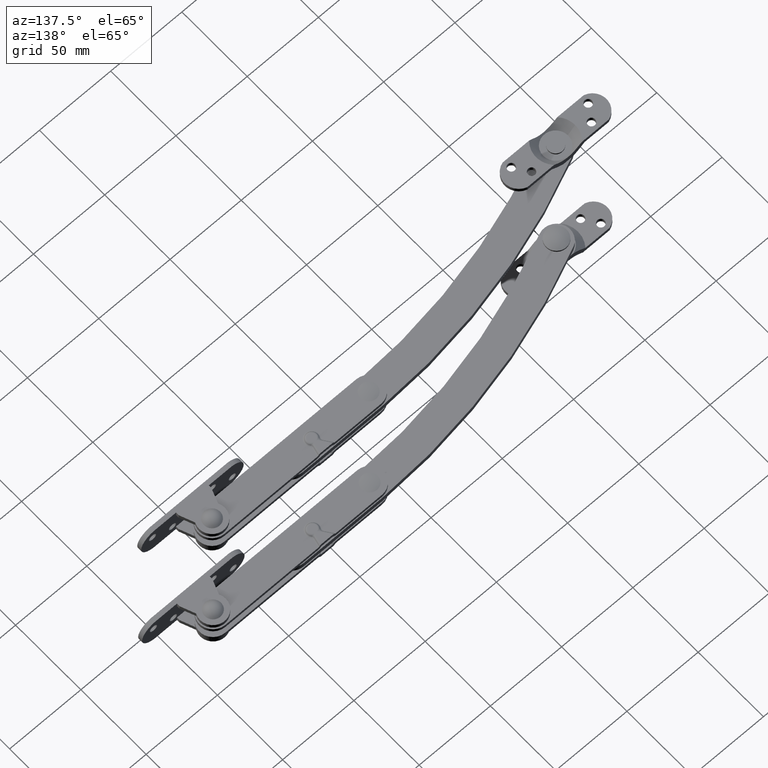
[diagram: clean part render]
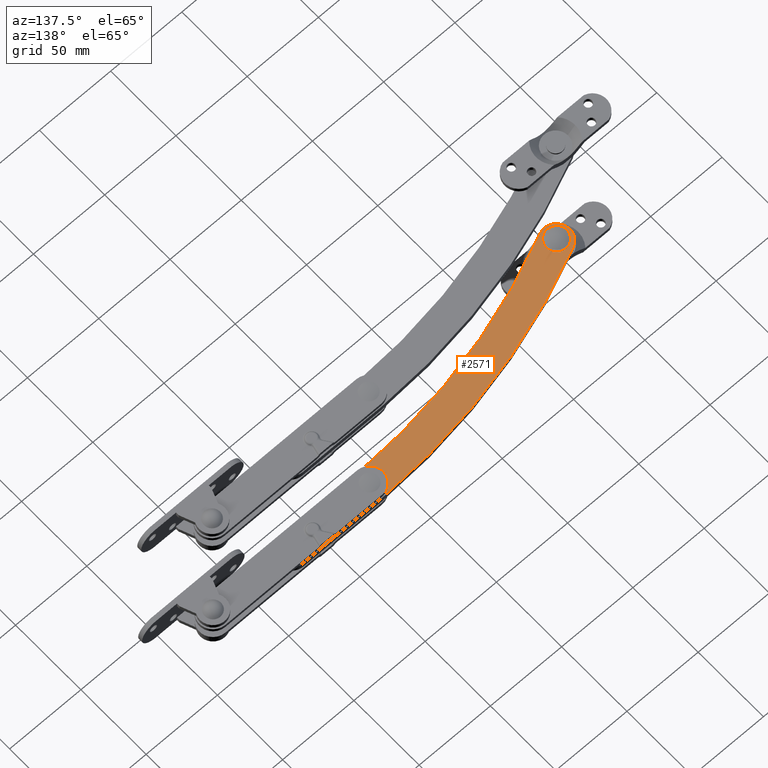
[diagram: same view with one face highlighted and labeled with its STEP entity id]
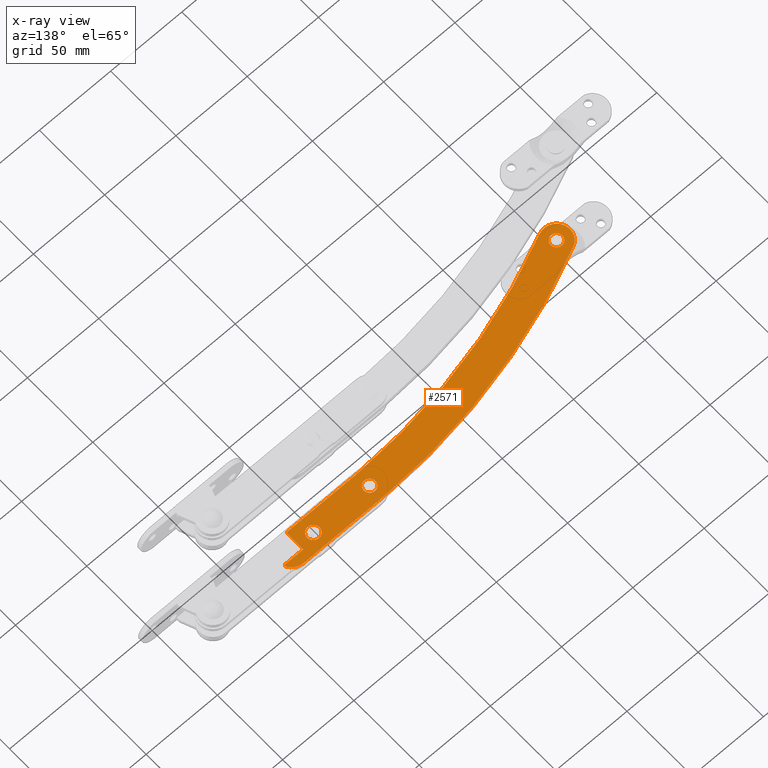
[diagram: x-ray of the same camera — body ghosted, the highlighted face saturated]
A machine part, auxiliary view. The second image highlights one B-rep face of the part: STEP entity #2571.
The next image is the same camera in x-ray: the body ghosted, the highlighted face saturated — about 0% of this face is hidden behind the body in this view.
In plain terms, the highlighted planar face has unit normal (0, 0, 1).
Its self-contained STEP definition (entity closure, byte-faithful):
#185=FACE_BOUND('',#587,.T.);
#186=FACE_BOUND('',#588,.T.);
#187=FACE_BOUND('',#589,.T.);
#307=PLANE('',#2773);
#417=FACE_OUTER_BOUND('',#586,.T.);
#586=EDGE_LOOP('',(#2133,#2134,#2135,#2136,#2137,#2138,#2139,#2140,#2141,
#2142));
#587=EDGE_LOOP('',(#2143));
#588=EDGE_LOOP('',(#2144));
#589=EDGE_LOOP('',(#2145));
#832=LINE('',#4659,#1006);
#835=LINE('',#4665,#1009);
#836=LINE('',#4667,#1010);
#837=LINE('',#4673,#1011);
#1006=VECTOR('',#3290,48.8921321404862);
#1009=VECTOR('',#3295,11.9998829026952);
#1010=VECTOR('',#3296,12.2112294809898);
#1011=VECTOR('',#3301,55.1025181390767);
#1112=CIRCLE('',#2770,1.);
#1114=CIRCLE('',#2774,1.);
#1115=CIRCLE('',#2775,9.5);
#1116=CIRCLE('',#2776,410.);
#1117=CIRCLE('',#2777,9.5);
#1118=CIRCLE('',#2778,392.);
#1119=CIRCLE('',#2779,4.30842198490352);
#1120=CIRCLE('',#2780,4.);
#1121=CIRCLE('',#2781,4.);
#1309=VERTEX_POINT('',#4649);
#1310=VERTEX_POINT('',#4650);
#1313=VERTEX_POINT('',#4658);
#1315=VERTEX_POINT('',#4664);
#1316=VERTEX_POINT('',#4666);
#1317=VERTEX_POINT('',#4668);
#1318=VERTEX_POINT('',#4670);
#1319=VERTEX_POINT('',#4672);
#1320=VERTEX_POINT('',#4674);
#1321=VERTEX_POINT('',#4676);
#1322=VERTEX_POINT('',#4679);
#1323=VERTEX_POINT('',#4681);
#1324=VERTEX_POINT('',#4683);
#1610=EDGE_CURVE('',#1309,#1310,#1112,.T.);
#1614=EDGE_CURVE('',#1313,#1310,#832,.T.);
#1617=EDGE_CURVE('',#1309,#1315,#835,.T.);
#1618=EDGE_CURVE('',#1315,#1316,#836,.T.);
#1619=EDGE_CURVE('',#1317,#1316,#1114,.T.);
#1620=EDGE_CURVE('',#1317,#1318,#1115,.T.);
#1621=EDGE_CURVE('',#1318,#1319,#837,.T.);
#1622=EDGE_CURVE('',#1319,#1320,#1116,.T.);
#1623=EDGE_CURVE('',#1320,#1321,#1117,.T.);
#1624=EDGE_CURVE('',#1321,#1313,#1118,.T.);
#1625=EDGE_CURVE('',#1322,#1322,#1119,.T.);
#1626=EDGE_CURVE('',#1323,#1323,#1120,.T.);
#1627=EDGE_CURVE('',#1324,#1324,#1121,.T.);
#2133=ORIENTED_EDGE('',*,*,#1610,.F.);
#2134=ORIENTED_EDGE('',*,*,#1617,.T.);
#2135=ORIENTED_EDGE('',*,*,#1618,.T.);
#2136=ORIENTED_EDGE('',*,*,#1619,.F.);
#2137=ORIENTED_EDGE('',*,*,#1620,.T.);
#2138=ORIENTED_EDGE('',*,*,#1621,.T.);
#2139=ORIENTED_EDGE('',*,*,#1622,.T.);
#2140=ORIENTED_EDGE('',*,*,#1623,.T.);
#2141=ORIENTED_EDGE('',*,*,#1624,.T.);
#2142=ORIENTED_EDGE('',*,*,#1614,.T.);
#2143=ORIENTED_EDGE('',*,*,#1625,.T.);
#2144=ORIENTED_EDGE('',*,*,#1626,.T.);
#2145=ORIENTED_EDGE('',*,*,#1627,.T.);
#2571=ADVANCED_FACE('',(#417,#185,#186,#187),#307,.T.);
#2770=AXIS2_PLACEMENT_3D('',#4651,#3282,#3283);
#2773=AXIS2_PLACEMENT_3D('',#4663,#3293,#3294);
#2774=AXIS2_PLACEMENT_3D('',#4669,#3297,#3298);
#2775=AXIS2_PLACEMENT_3D('',#4671,#3299,#3300);
#2776=AXIS2_PLACEMENT_3D('',#4675,#3302,#3303);
#2777=AXIS2_PLACEMENT_3D('',#4677,#3304,#3305);
#2778=AXIS2_PLACEMENT_3D('',#4678,#3306,#3307);
#2779=AXIS2_PLACEMENT_3D('',#4680,#3308,#3309);
#2780=AXIS2_PLACEMENT_3D('',#4682,#3310,#3311);
#2781=AXIS2_PLACEMENT_3D('',#4684,#3312,#3313);
#3282=DIRECTION('center_axis',(0.,0.,-1.));
#3283=DIRECTION('ref_axis',(0.70710284450091,-0.707110717850268,0.));
#3290=DIRECTION('',(0.99999999993801,-1.11345974534896E-5,0.));
#3293=DIRECTION('center_axis',(0.,0.,1.));
#3294=DIRECTION('ref_axis',(1.,0.,0.));
#3295=DIRECTION('',(0.,1.,0.));
#3296=DIRECTION('',(1.,0.,0.));
#3297=DIRECTION('center_axis',(0.,0.,-1.));
#3298=DIRECTION('ref_axis',(0.874472940785302,-0.485074299292702,0.));
#3299=DIRECTION('center_axis',(0.,0.,1.));
#3300=DIRECTION('ref_axis',(1.,0.,0.));
#3301=DIRECTION('',(-0.999999999949422,-1.00576798161879E-5,0.));
#3302=DIRECTION('center_axis',(0.,0.,1.));
#3303=DIRECTION('ref_axis',(-0.0108014404471504,0.999941662740515,0.));
#3304=DIRECTION('center_axis',(0.,0.,1.));
#3305=DIRECTION('ref_axis',(1.,0.,0.));
#3306=DIRECTION('center_axis',(0.,0.,-1.));
#3307=DIRECTION('ref_axis',(0.0113432821040925,-0.999935662905923,0.));
#3308=DIRECTION('center_axis',(0.,0.,-1.));
#3309=DIRECTION('ref_axis',(0.,1.,0.));
#3310=DIRECTION('center_axis',(0.,0.,-1.));
#3311=DIRECTION('ref_axis',(-1.,0.,0.));
#3312=DIRECTION('center_axis',(0.,0.,-1.));
#3313=DIRECTION('ref_axis',(-1.,0.,0.));
#4649=CARTESIAN_POINT('',(215.999904452042,29.5000668081217,4.));
#4650=CARTESIAN_POINT('',(214.999893317444,28.5000668081837,4.));
#4651=CARTESIAN_POINT('Origin',(214.999904452042,29.5000668081217,4.));
#4658=CARTESIAN_POINT('',(166.107761179989,28.5006112023937,4.));
#4659=CARTESIAN_POINT('',(166.107761179989,28.5006112023937,4.));
#4663=CARTESIAN_POINT('Origin',(191.750615353886,38.0032391838136,4.));
#4664=CARTESIAN_POINT('',(215.999904452042,41.4999497108169,4.));
#4665=CARTESIAN_POINT('',(215.999904452042,39.7515944473153,4.));
#4666=CARTESIAN_POINT('',(228.211133933032,41.4999497108169,4.));
#4667=CARTESIAN_POINT('',(213.875259902964,41.4999497108169,4.));
#4668=CARTESIAN_POINT('',(229.059502631035,43.0293555591483,4.));
#4669=CARTESIAN_POINT('Origin',(228.211133933032,42.4999497108169,4.));
#4670=CARTESIAN_POINT('',(220.999904452042,47.4999999995195,4.));
#4671=CARTESIAN_POINT('Origin',(221.,38.,4.));
#4672=CARTESIAN_POINT('',(165.897386315752,47.499445796035,4.));
#4673=CARTESIAN_POINT('',(220.999904452042,47.4999999995195,4.));
#4674=CARTESIAN_POINT('',(-4.0401917117136,8.59807251263916,4.));
#4675=CARTESIAN_POINT('Origin',(170.325976899084,-362.476635927576,4.));
#4676=CARTESIAN_POINT('',(4.03553203926659,-8.600260528615,4.));
#4677=CARTESIAN_POINT('Origin',(0.,0.,4.));
#4678=CARTESIAN_POINT('Origin',(170.554327764793,-363.474168656728,4.));
#4679=CARTESIAN_POINT('',(205.5,33.6915780150965,4.));
#4680=CARTESIAN_POINT('Origin',(205.5,38.,4.));
#4681=CARTESIAN_POINT('',(170.,38.,3.99999999999999));
#4682=CARTESIAN_POINT('Origin',(166.,38.,3.99999999999999));
#4683=CARTESIAN_POINT('',(4.,-4.89858719658941E-16,3.99999999999999));
#4684=CARTESIAN_POINT('Origin',(0.,0.,3.99999999999999));